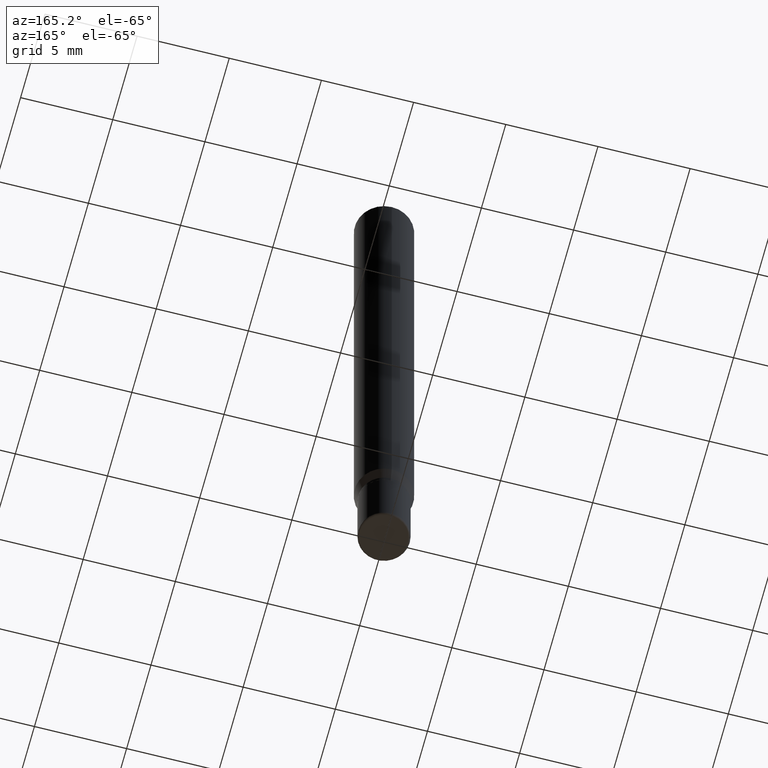
[diagram: clean part render]
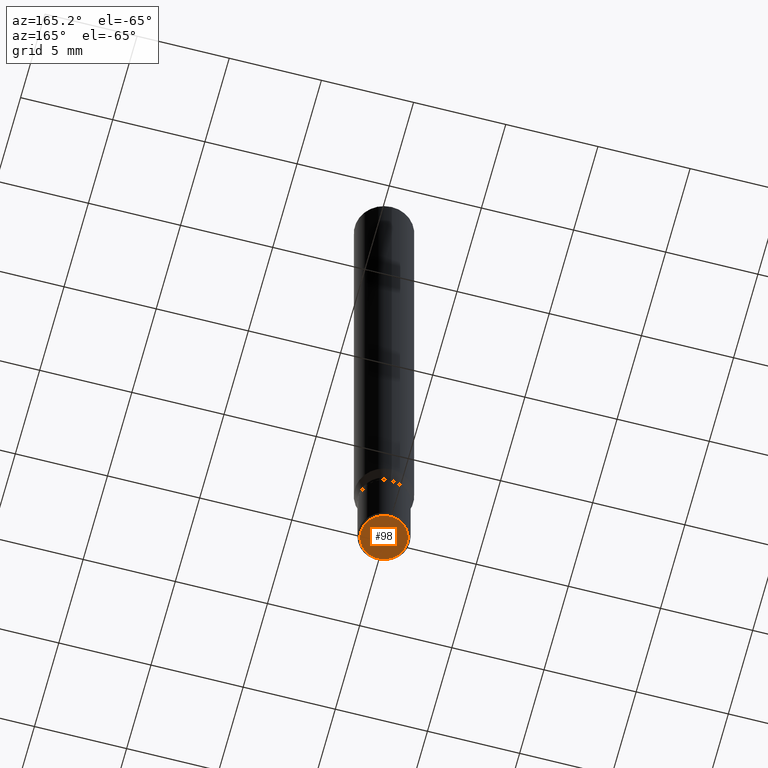
[diagram: same view with one face highlighted and labeled with its STEP entity id]
A machine part, auxiliary view. The second image highlights one B-rep face of the part: STEP entity #98.
In plain terms, the highlighted planar face has unit normal (-0, 0, 1).
Its self-contained STEP definition (entity closure, byte-faithful):
#7 = AXIS2_PLACEMENT_3D ( 'NONE', #481, #54, #406 ) ;
#43 = CIRCLE ( 'NONE', #7, 0.04999999999999999584 ) ;
#54 = DIRECTION ( 'NONE',  ( -2.445468806185136597E-29, 3.491481338843145583E-15, 1.000000000000000000 ) ) ;
#55 = CARTESIAN_POINT ( 'NONE',  ( 3.582686580359767159E-29, -5.359686688179454114E-15, -1.500000000000000444 ) ) ;
#58 = DIRECTION ( 'NONE',  ( -2.438088387897960049E-29, 3.491481338843145188E-15, 1.000000000000000000 ) ) ;
#93 = DIRECTION ( 'NONE',  ( 1.000000000000000000, -6.982962677686265922E-15, 4.876176775795935793E-29 ) ) ;
#98 = ADVANCED_FACE ( 'NONE', ( #460 ), #128, .F. ) ;
#99 = ORIENTED_EDGE ( 'NONE', *, *, #453, .F. ) ;
#120 = ORIENTED_EDGE ( 'NONE', *, *, #372, .F. ) ;
#128 = PLANE ( 'NONE',  #399 ) ;
#148 = VERTEX_POINT ( 'NONE', #299 ) ;
#219 = AXIS2_PLACEMENT_3D ( 'NONE', #236, #273, #455 ) ;
#236 = CARTESIAN_POINT ( 'NONE',  ( 3.668203209277706016E-29, -5.237222008264719754E-15, -1.500000000000000444 ) ) ;
#273 = DIRECTION ( 'NONE',  ( -2.445468806185136597E-29, 3.491481338843145583E-15, 1.000000000000000000 ) ) ;
#299 = CARTESIAN_POINT ( 'NONE',  ( -0.04999999999999999584, -4.855458368643558124E-15, -1.500000000000000444 ) ) ;
#323 = EDGE_LOOP ( 'NONE', ( #99, #120 ) ) ;
#372 = EDGE_CURVE ( 'NONE', #148, #407, #43, .T. ) ;
#373 = CARTESIAN_POINT ( 'NONE',  ( 0.04999999999999999584, -5.586370142149033090E-15, -1.500000000000000444 ) ) ;
#399 = AXIS2_PLACEMENT_3D ( 'NONE', #55, #58, #93 ) ;
#406 = DIRECTION ( 'NONE',  ( 1.000000000000000000, -6.982962677686275388E-15, 0.000000000000000000 ) ) ;
#407 = VERTEX_POINT ( 'NONE', #373 ) ;
#430 = CIRCLE ( 'NONE', #219, 0.04999999999999999584 ) ;
#453 = EDGE_CURVE ( 'NONE', #407, #148, #430, .T. ) ;
#455 = DIRECTION ( 'NONE',  ( 1.000000000000000000, -6.982962677686275388E-15, 0.000000000000000000 ) ) ;
#460 = FACE_OUTER_BOUND ( 'NONE', #323, .T. ) ;
#481 = CARTESIAN_POINT ( 'NONE',  ( 3.668203209277706016E-29, -5.237222008264719754E-15, -1.500000000000000444 ) ) ;